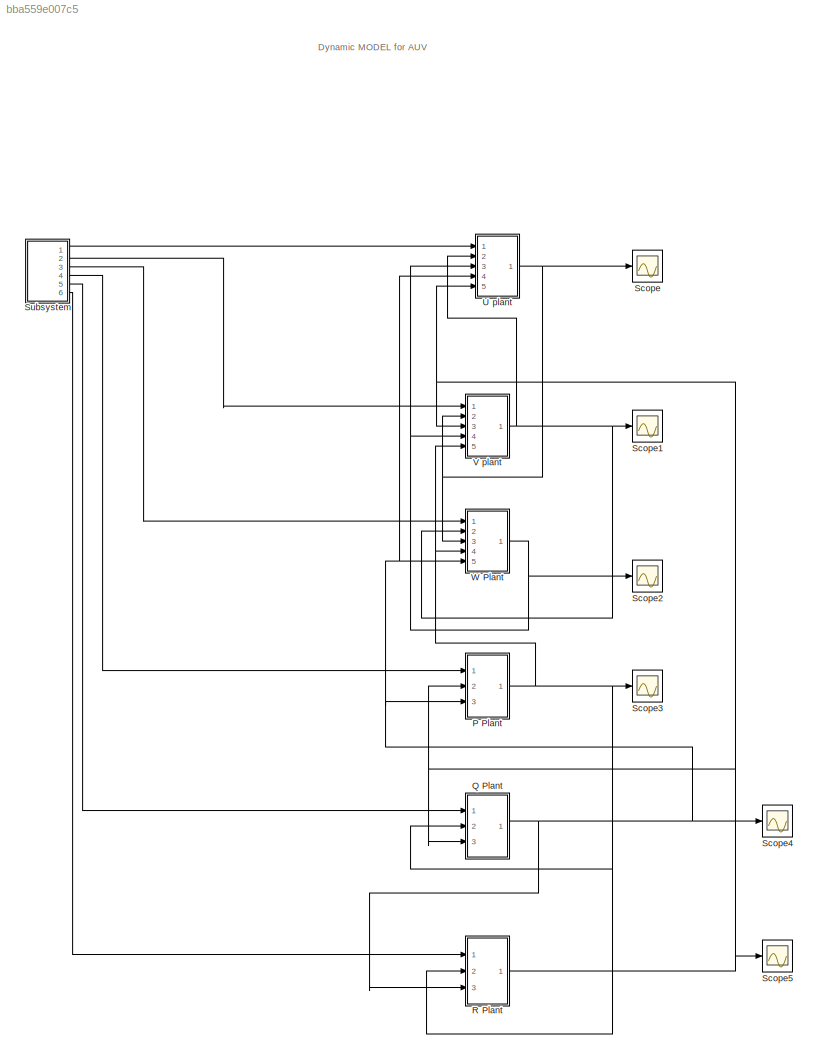
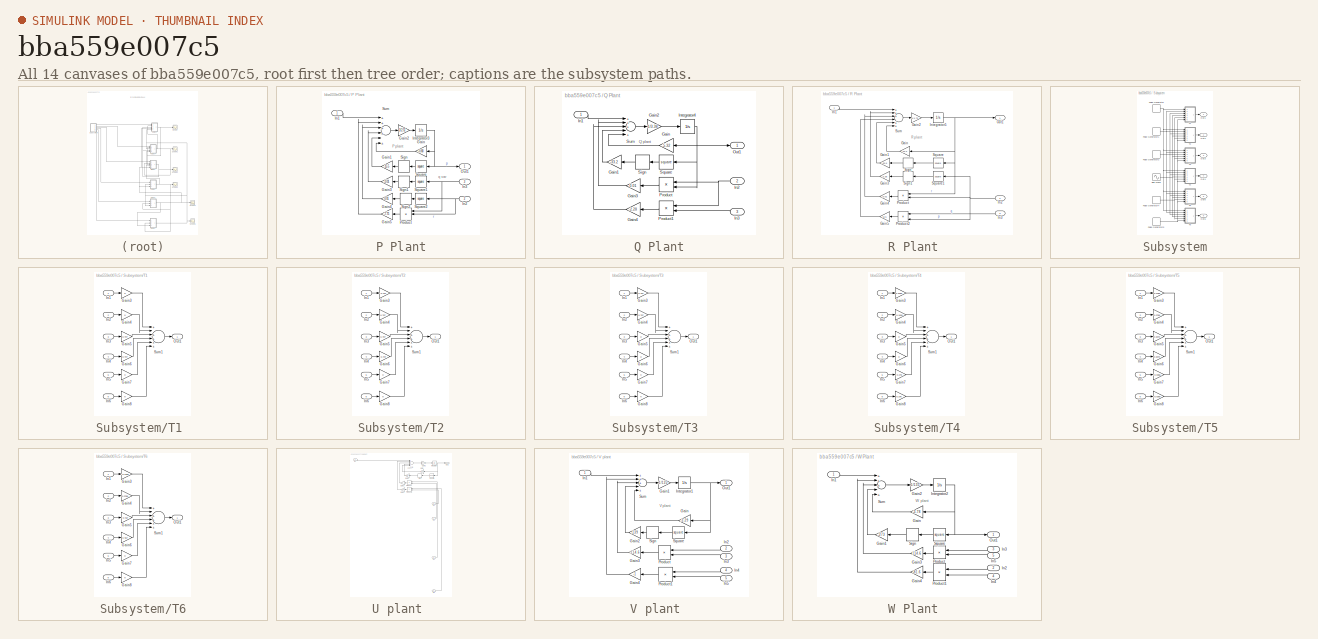
[diagram: thumbnail index - all 14 canvases of the model, root first then tree order]
MODEL slx_bba559e007c5
KIND model
CONFIG AbsTol = auto
CONFIG EnableMultiTasking = off
CONFIG FixedStep = auto
CONFIG MaxStep = auto
CONFIG MinStep = auto
CONFIG RelTol = 1e-3
CONFIG SampleTimeConstraint = Unconstrained
CONFIG Solver = VariableStepAuto
CONFIG SolverName = VariableStepAuto
CONFIG StartTime = 0.0
CONFIG StopTime = 250
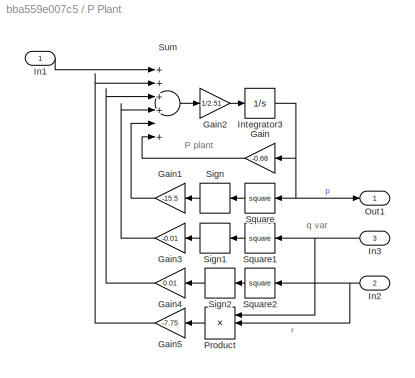
BLOCK [SubSystem] P Plant
  Ports = [3, 1]
  RequestExecContextInheritance = off
BLOCK [Gain] P Plant/Gain
  Gain = -0.68
  OutDataTypeStr = Inherit: Inherit via internal rule
  ParamDataTypeStr = Inherit: Inherit via internal rule
  SaturateOnIntegerOverflow = off
BLOCK [Gain] P Plant/Gain1
  Gain = -15.5
  OutDataTypeStr = Inherit: Inherit via internal rule
  ParamDataTypeStr = Inherit: Inherit via internal rule
  SaturateOnIntegerOverflow = off
BLOCK [Gain] P Plant/Gain2
  Gain = 1/2.51
  OutDataTypeStr = Inherit: Inherit via internal rule
  ParamDataTypeStr = Inherit: Inherit via internal rule
  SaturateOnIntegerOverflow = off
BLOCK [Gain] P Plant/Gain3
  Gain = -0.01
  OutDataTypeStr = Inherit: Inherit via internal rule
  ParamDataTypeStr = Inherit: Inherit via internal rule
  SaturateOnIntegerOverflow = off
BLOCK [Gain] P Plant/Gain4
  Gain = 0.01
  OutDataTypeStr = Inherit: Inherit via internal rule
  ParamDataTypeStr = Inherit: Inherit via internal rule
  SaturateOnIntegerOverflow = off
BLOCK [Gain] P Plant/Gain5
  Gain = -7.75
  OutDataTypeStr = Inherit: Inherit via internal rule
  ParamDataTypeStr = Inherit: Inherit via internal rule
  SaturateOnIntegerOverflow = off
BLOCK [Inport] P Plant/In1
  IconDisplay = Port number
BLOCK [Inport] P Plant/In2
  IconDisplay = Port number
  Port = 2
BLOCK [Inport] P Plant/In3 
  IconDisplay = Port number
  Port = 3
BLOCK [Integrator] P Plant/Integrator3
  Ports = [1, 1]
BLOCK [Outport] P Plant/Out1
  IconDisplay = Port number
BLOCK [Product] P Plant/Product
  InputSameDT = off
  Inputs = 3
  OutDataTypeStr = Inherit: Inherit via internal rule
  Ports = [3, 1]
  RndMeth = Floor
  SaturateOnIntegerOverflow = off
BLOCK [Signum] P Plant/Sign
BLOCK [Signum] P Plant/Sign1
BLOCK [Signum] P Plant/Sign2
BLOCK [Math] P Plant/Square
  Operator = square
  Ports = [1, 1]
BLOCK [Math] P Plant/Square1
  Operator = square
  Ports = [1, 1]
BLOCK [Math] P Plant/Square2
  Operator = square
  Ports = [1, 1]
BLOCK [Sum] P Plant/Sum
  InputSameDT = off
  Inputs = ++++|++
  OutDataTypeStr = Inherit: Inherit via internal rule
  Ports = [6, 1]
  SaturateOnIntegerOverflow = off
BLOCK [SubSystem] Q Plant
  Ports = [3, 1]
  RequestExecContextInheritance = off
BLOCK [Gain] Q Plant/Gain
  Gain = -5.32
  OutDataTypeStr = Inherit: Inherit via internal rule
  ParamDataTypeStr = Inherit: Inherit via internal rule
  SaturateOnIntegerOverflow = off
BLOCK [Gain] Q Plant/Gain1
  Gain = -33.2
  OutDataTypeStr = Inherit: Inherit via internal rule
  ParamDataTypeStr = Inherit: Inherit via internal rule
  SaturateOnIntegerOverflow = off
BLOCK [Gain] Q Plant/Gain2
  Gain = 1/3.38
  OutDataTypeStr = Inherit: Inherit via internal rule
  ParamDataTypeStr = Inherit: Inherit via internal rule
  SaturateOnIntegerOverflow = off
BLOCK [Gain] Q Plant/Gain3
  Gain = 0.01
  OutDataTypeStr = Inherit: Inherit via internal rule
  ParamDataTypeStr = Inherit: Inherit via internal rule
  SaturateOnIntegerOverflow = off
BLOCK [Gain] Q Plant/Gain4
  Gain = -2.28
  OutDataTypeStr = Inherit: Inherit via internal rule
  ParamDataTypeStr = Inherit: Inherit via internal rule
  SaturateOnIntegerOverflow = off
BLOCK [Inport] Q Plant/In1
  IconDisplay = Port number
BLOCK [Inport] Q Plant/In2
  IconDisplay = Port number
  Port = 2
BLOCK [Inport] Q Plant/In3
  IconDisplay = Port number
  Port = 3
BLOCK [Integrator] Q Plant/Integrator4
  Ports = [1, 1]
BLOCK [Outport] Q Plant/Out1
  IconDisplay = Port number
BLOCK [Product] Q Plant/Product
  InputSameDT = off
  OutDataTypeStr = Inherit: Inherit via internal rule
  Ports = [2, 1]
  RndMeth = Floor
  SaturateOnIntegerOverflow = off
BLOCK [Product] Q Plant/Product1
  InputSameDT = off
  OutDataTypeStr = Inherit: Inherit via internal rule
  Ports = [2, 1]
  RndMeth = Floor
  SaturateOnIntegerOverflow = off
BLOCK [Signum] Q Plant/Sign
BLOCK [Math] Q Plant/Square
  Operator = square
  Ports = [1, 1]
BLOCK [Sum] Q Plant/Sum
  InputSameDT = off
  Inputs = +++|++
  OutDataTypeStr = Inherit: Inherit via internal rule
  Ports = [5, 1]
  SaturateOnIntegerOverflow = off
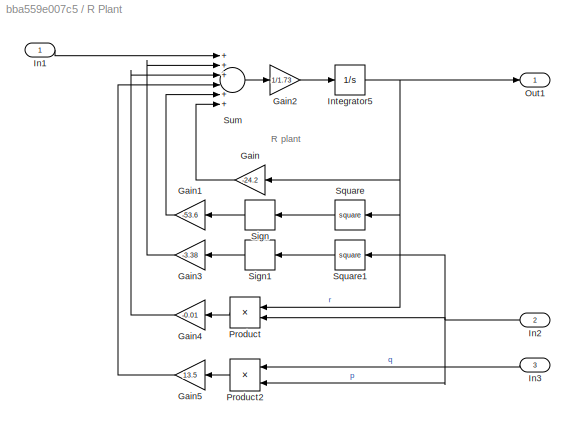
BLOCK [SubSystem] R Plant 
  Ports = [3, 1]
  RequestExecContextInheritance = off
BLOCK [Gain] R Plant /Gain
  Gain = -24.2
  OutDataTypeStr = Inherit: Inherit via internal rule
  ParamDataTypeStr = Inherit: Inherit via internal rule
  SaturateOnIntegerOverflow = off
BLOCK [Gain] R Plant /Gain1
  Gain = -53.6
  OutDataTypeStr = Inherit: Inherit via internal rule
  ParamDataTypeStr = Inherit: Inherit via internal rule
  SaturateOnIntegerOverflow = off
BLOCK [Gain] R Plant /Gain2
  Gain = 1/1.73
  OutDataTypeStr = Inherit: Inherit via internal rule
  ParamDataTypeStr = Inherit: Inherit via internal rule
  SaturateOnIntegerOverflow = off
BLOCK [Gain] R Plant /Gain3
  Gain = -3.38
  OutDataTypeStr = Inherit: Inherit via internal rule
  ParamDataTypeStr = Inherit: Inherit via internal rule
  SaturateOnIntegerOverflow = off
BLOCK [Gain] R Plant /Gain4
  Gain = -0.01
  OutDataTypeStr = Inherit: Inherit via internal rule
  ParamDataTypeStr = Inherit: Inherit via internal rule
  SaturateOnIntegerOverflow = off
BLOCK [Gain] R Plant /Gain5
  Gain = 13.5
  OutDataTypeStr = Inherit: Inherit via internal rule
  ParamDataTypeStr = Inherit: Inherit via internal rule
  SaturateOnIntegerOverflow = off
BLOCK [Inport] R Plant /In1
  IconDisplay = Port number
BLOCK [Inport] R Plant /In2
  IconDisplay = Port number
  Port = 2
BLOCK [Inport] R Plant /In3
  IconDisplay = Port number
  Port = 3
BLOCK [Integrator] R Plant /Integrator5
  Ports = [1, 1]
BLOCK [Outport] R Plant /Out1
  IconDisplay = Port number
BLOCK [Product] R Plant /Product
  InputSameDT = off
  OutDataTypeStr = Inherit: Inherit via internal rule
  Ports = [2, 1]
  RndMeth = Floor
  SaturateOnIntegerOverflow = off
BLOCK [Product] R Plant /Product2
  InputSameDT = off
  Inputs = 3
  OutDataTypeStr = Inherit: Inherit via internal rule
  Ports = [3, 1]
  RndMeth = Floor
  SaturateOnIntegerOverflow = off
BLOCK [Signum] R Plant /Sign
BLOCK [Signum] R Plant /Sign1
BLOCK [Math] R Plant /Square
  Operator = square
  Ports = [1, 1]
BLOCK [Math] R Plant /Square1
  Operator = square
  Ports = [1, 1]
BLOCK [Sum] R Plant /Sum
  InputSameDT = off
  Inputs = +++|+++
  OutDataTypeStr = Inherit: Inherit via internal rule
  Ports = [6, 1]
  SaturateOnIntegerOverflow = off
BLOCK [Scope] Scope
  Floating = off
  NumInputPorts = 1
  Ports = [1]
  ScopeSpecificationString = Simulink.scopes.TimeScopeBlockCfg('CurrentConfiguration', extmgr.ConfigurationSet(extmgr.Configuration('Core','General UI',true),extmgr.Configuration('Core','Source UI',true),extmgr.Configuration('Sources','WiredSimulink',true),extmgr.Configuration('Visuals','Time Domain',true,'SerializedDisplays',{struct('MinYLimReal','-0.39563','MaxYLimReal','1.641','YLabelReal','','MinYLimMag','0.00000','MaxYLi...<+1347ch>
BLOCK [Scope] Scope1
  Floating = off
  NumInputPorts = 1
  Ports = [1]
  ScopeSpecificationString = Simulink.scopes.TimeScopeBlockCfg('CurrentConfiguration', extmgr.ConfigurationSet(extmgr.Configuration('Core','General UI',true),extmgr.Configuration('Core','Source UI',true),extmgr.Configuration('Sources','WiredSimulink',true,'DataLoggingVariableName','ScopeData1'),extmgr.Configuration('Visuals','Time Domain',true,'SerializedDisplays',{struct('MinYLimReal','-2.33546','MaxYLimReal','6.95281','YLab...<+1394ch>
BLOCK [Scope] Scope2
  Floating = off
  NumInputPorts = 1
  Ports = [1]
  ScopeSpecificationString = Simulink.scopes.TimeScopeBlockCfg('CurrentConfiguration', extmgr.ConfigurationSet(extmgr.Configuration('Core','General UI',true),extmgr.Configuration('Core','Source UI',true),extmgr.Configuration('Sources','WiredSimulink',true,'DataLoggingVariableName','ScopeData2'),extmgr.Configuration('Visuals','Time Domain',true,'SerializedDisplays',{struct('MinYLimReal','-214.25825','MaxYLimReal','23.80647','Y...<+1406ch>
BLOCK [Scope] Scope3
  Floating = off
  NumInputPorts = 1
  Ports = [1]
  ScopeSpecificationString = Simulink.scopes.TimeScopeBlockCfg('CurrentConfiguration', extmgr.ConfigurationSet(extmgr.Configuration('Core','General UI',true),extmgr.Configuration('Core','Source UI',true),extmgr.Configuration('Sources','WiredSimulink',true,'DataLoggingVariableName','ScopeData3'),extmgr.Configuration('Visuals','Time Domain',true,'SerializedDisplays',{struct('MinYLimReal','-1.00000','MaxYLimReal','1.00000','YLab...<+1393ch>
BLOCK [Scope] Scope4
  Floating = off
  NumInputPorts = 1
  Ports = [1]
  ScopeSpecificationString = Simulink.scopes.TimeScopeBlockCfg('CurrentConfiguration', extmgr.ConfigurationSet(extmgr.Configuration('Core','General UI',true),extmgr.Configuration('Core','Source UI',true),extmgr.Configuration('Sources','WiredSimulink',true,'DataLoggingVariableName','ScopeData4'),extmgr.Configuration('Visuals','Time Domain',true,'SerializedDisplays',{struct('MinYLimReal','-7.07501','MaxYLimReal','0.78611','YLab...<+1393ch>
BLOCK [Scope] Scope5
  Floating = off
  NumInputPorts = 1
  Ports = [1]
  ScopeSpecificationString = Simulink.scopes.TimeScopeBlockCfg('CurrentConfiguration', extmgr.ConfigurationSet(extmgr.Configuration('Core','General UI',true),extmgr.Configuration('Core','Source UI',true),extmgr.Configuration('Sources','WiredSimulink',true,'DataLoggingVariableName','ScopeData5'),extmgr.Configuration('Visuals','Time Domain',true,'SerializedDisplays',{struct('MinYLimReal','-2.51609','MaxYLimReal','0.27957','YLab...<+1394ch>
BLOCK [SubSystem] Subsystem
  Ports = [0, 6]
  RequestExecContextInheritance = off
BLOCK [Outport] Subsystem/Out1
  IconDisplay = Port number
BLOCK [Outport] Subsystem/Out2
  IconDisplay = Port number
  Port = 2
BLOCK [Outport] Subsystem/Out3
  IconDisplay = Port number
  Port = 3
BLOCK [Outport] Subsystem/Out4
  IconDisplay = Port number
  Port = 4
BLOCK [Outport] Subsystem/Out5
  IconDisplay = Port number
  Port = 5
BLOCK [Outport] Subsystem/Out6
  IconDisplay = Port number
  Port = 6
BLOCK [DiscretePulseGenerator] Subsystem/Pulse Generator
  Amplitude = 0
  Period = 10
  Ports = [0, 1]
  PulseType = Time based
  PulseWidth = 5
BLOCK [DiscretePulseGenerator] Subsystem/Pulse Generator1
  Amplitude = 0
  Period = 10
  Ports = [0, 1]
  PulseType = Time based
  PulseWidth = 5
BLOCK [DiscretePulseGenerator] Subsystem/Pulse Generator2
  Amplitude = 0
  Period = 10
  Ports = [0, 1]
  PulseType = Time based
  PulseWidth = 5
BLOCK [DiscretePulseGenerator] Subsystem/Pulse Generator4
  Amplitude = 0
  Period = 10
  Ports = [0, 1]
  PulseType = Time based
  PulseWidth = 5
BLOCK [DiscretePulseGenerator] Subsystem/Pulse Generator5
  Amplitude = 0
  Period = 10
  Ports = [0, 1]
  PulseType = Time based
  PulseWidth = 5
BLOCK [Sin] Subsystem/Sine Wave
  Ports = [0, 1]
  SampleTime = 0
BLOCK [SubSystem] Subsystem/T1 
  Ports = [6, 1]
  RequestExecContextInheritance = off
BLOCK [Gain] Subsystem/T1 /Gain3
  Gain = 0
  OutDataTypeStr = Inherit: Inherit via internal rule
  ParamDataTypeStr = Inherit: Inherit via internal rule
  SaturateOnIntegerOverflow = off
BLOCK [Gain] Subsystem/T1 /Gain4
  Gain = 0
  OutDataTypeStr = Inherit: Inherit via internal rule
  ParamDataTypeStr = Inherit: Inherit via internal rule
  SaturateOnIntegerOverflow = off
BLOCK [Gain] Subsystem/T1 /Gain5
  Gain = 0.707
  OutDataTypeStr = Inherit: Inherit via internal rule
  ParamDataTypeStr = Inherit: Inherit via internal rule
  SaturateOnIntegerOverflow = off
BLOCK [Gain] Subsystem/T1 /Gain6
  Gain = 0.707
  OutDataTypeStr = Inherit: Inherit via internal rule
  ParamDataTypeStr = Inherit: Inherit via internal rule
  SaturateOnIntegerOverflow = off
BLOCK [Gain] Subsystem/T1 /Gain7
  Gain = 0
  OutDataTypeStr = Inherit: Inherit via internal rule
  ParamDataTypeStr = Inherit: Inherit via internal rule
  SaturateOnIntegerOverflow = off
BLOCK [Gain] Subsystem/T1 /Gain8
  Gain = 0
  OutDataTypeStr = Inherit: Inherit via internal rule
  ParamDataTypeStr = Inherit: Inherit via internal rule
  SaturateOnIntegerOverflow = off
BLOCK [Inport] Subsystem/T1 /In1
  IconDisplay = Port number
BLOCK [Inport] Subsystem/T1 /In2
  IconDisplay = Port number
  Port = 2
BLOCK [Inport] Subsystem/T1 /In3
  IconDisplay = Port number
  Port = 3
BLOCK [Inport] Subsystem/T1 /In4
  IconDisplay = Port number
  Port = 4
BLOCK [Inport] Subsystem/T1 /In5
  IconDisplay = Port number
  Port = 5
BLOCK [Inport] Subsystem/T1 /In6
  IconDisplay = Port number
  Port = 6
BLOCK [Outport] Subsystem/T1 /Out1
  IconDisplay = Port number
BLOCK [Sum] Subsystem/T1 /Sum1
  InputSameDT = off
  Inputs = +|+++++
  OutDataTypeStr = Inherit: Inherit via internal rule
  Ports = [6, 1]
  SaturateOnIntegerOverflow = off
BLOCK [SubSystem] Subsystem/T2
  Ports = [6, 1]
  RequestExecContextInheritance = off
BLOCK [Gain] Subsystem/T2/Gain3
  Gain = -0.707
  OutDataTypeStr = Inherit: Inherit via internal rule
  ParamDataTypeStr = Inherit: Inherit via internal rule
  SaturateOnIntegerOverflow = off
BLOCK [Gain] Subsystem/T2/Gain4
  Gain = 0.707
  OutDataTypeStr = Inherit: Inherit via internal rule
  ParamDataTypeStr = Inherit: Inherit via internal rule
  SaturateOnIntegerOverflow = off
BLOCK [Gain] Subsystem/T2/Gain5
  Gain = 0.707
  OutDataTypeStr = Inherit: Inherit via internal rule
  ParamDataTypeStr = Inherit: Inherit via internal rule
  SaturateOnIntegerOverflow = off
BLOCK [Gain] Subsystem/T2/Gain6
  Gain = -0.707
  OutDataTypeStr = Inherit: Inherit via internal rule
  ParamDataTypeStr = Inherit: Inherit via internal rule
  SaturateOnIntegerOverflow = off
BLOCK [Gain] Subsystem/T2/Gain7
  Gain = 0
  OutDataTypeStr = Inherit: Inherit via internal rule
  ParamDataTypeStr = Inherit: Inherit via internal rule
  SaturateOnIntegerOverflow = off
BLOCK [Gain] Subsystem/T2/Gain8
  Gain = 0
  OutDataTypeStr = Inherit: Inherit via internal rule
  ParamDataTypeStr = Inherit: Inherit via internal rule
  SaturateOnIntegerOverflow = off
BLOCK [Inport] Subsystem/T2/In1
  IconDisplay = Port number
BLOCK [Inport] Subsystem/T2/In2
  IconDisplay = Port number
  Port = 2
BLOCK [Inport] Subsystem/T2/In3
  IconDisplay = Port number
  Port = 3
BLOCK [Inport] Subsystem/T2/In4
  IconDisplay = Port number
  Port = 4
BLOCK [Inport] Subsystem/T2/In5
  IconDisplay = Port number
  Port = 5
BLOCK [Inport] Subsystem/T2/In6
  IconDisplay = Port number
  Port = 6
BLOCK [Outport] Subsystem/T2/Out1
  IconDisplay = Port number
BLOCK [Sum] Subsystem/T2/Sum1
  InputSameDT = off
  Inputs = +|+++++
  OutDataTypeStr = Inherit: Inherit via internal rule
  Ports = [6, 1]
  SaturateOnIntegerOverflow = off
BLOCK [SubSystem] Subsystem/T3 
  Ports = [6, 1]
  RequestExecContextInheritance = off
BLOCK [Gain] Subsystem/T3 /Gain3
  Gain = 0.707
  OutDataTypeStr = Inherit: Inherit via internal rule
  ParamDataTypeStr = Inherit: Inherit via internal rule
  SaturateOnIntegerOverflow = off
BLOCK [Gain] Subsystem/T3 /Gain4
  Gain = 0.707
  OutDataTypeStr = Inherit: Inherit via internal rule
  ParamDataTypeStr = Inherit: Inherit via internal rule
  SaturateOnIntegerOverflow = off
BLOCK [Gain] Subsystem/T3 /Gain5
  Gain = 0
  OutDataTypeStr = Inherit: Inherit via internal rule
  ParamDataTypeStr = Inherit: Inherit via internal rule
  SaturateOnIntegerOverflow = off
BLOCK [Gain] Subsystem/T3 /Gain6
  Gain = 0
  OutDataTypeStr = Inherit: Inherit via internal rule
  ParamDataTypeStr = Inherit: Inherit via internal rule
  SaturateOnIntegerOverflow = off
BLOCK [Gain] Subsystem/T3 /Gain7
  OutDataTypeStr = Inherit: Inherit via internal rule
  ParamDataTypeStr = Inherit: Inherit via internal rule
  SaturateOnIntegerOverflow = off
BLOCK [Gain] Subsystem/T3 /Gain8
  OutDataTypeStr = Inherit: Inherit via internal rule
  ParamDataTypeStr = Inherit: Inherit via internal rule
  SaturateOnIntegerOverflow = off
BLOCK [Inport] Subsystem/T3 /In1
  IconDisplay = Port number
BLOCK [Inport] Subsystem/T3 /In2
  IconDisplay = Port number
  Port = 2
BLOCK [Inport] Subsystem/T3 /In3
  IconDisplay = Port number
  Port = 3
BLOCK [Inport] Subsystem/T3 /In4
  IconDisplay = Port number
  Port = 4
BLOCK [Inport] Subsystem/T3 /In5
  IconDisplay = Port number
  Port = 5
BLOCK [Inport] Subsystem/T3 /In6
  IconDisplay = Port number
  Port = 6
BLOCK [Outport] Subsystem/T3 /Out1
  IconDisplay = Port number
BLOCK [Sum] Subsystem/T3 /Sum1
  InputSameDT = off
  Inputs = +|+++++
  OutDataTypeStr = Inherit: Inherit via internal rule
  Ports = [6, 1]
  SaturateOnIntegerOverflow = off
BLOCK [SubSystem] Subsystem/T4
  Ports = [6, 1]
  RequestExecContextInheritance = off
BLOCK [Gain] Subsystem/T4/Gain3
  Gain = 0.1099
  OutDataTypeStr = Inherit: Inherit via internal rule
  ParamDataTypeStr = Inherit: Inherit via internal rule
  SaturateOnIntegerOverflow = off
BLOCK [Gain] Subsystem/T4/Gain4
  Gain = -0.1099
  OutDataTypeStr = Inherit: Inherit via internal rule
  ParamDataTypeStr = Inherit: Inherit via internal rule
  SaturateOnIntegerOverflow = off
BLOCK [Gain] Subsystem/T4/Gain5
  Gain = 0
  OutDataTypeStr = Inherit: Inherit via internal rule
  ParamDataTypeStr = Inherit: Inherit via internal rule
  SaturateOnIntegerOverflow = off
BLOCK [Gain] Subsystem/T4/Gain6
  Gain = 0
  OutDataTypeStr = Inherit: Inherit via internal rule
  ParamDataTypeStr = Inherit: Inherit via internal rule
  SaturateOnIntegerOverflow = off
BLOCK [Gain] Subsystem/T4/Gain7
  Gain = -0.275
  OutDataTypeStr = Inherit: Inherit via internal rule
  ParamDataTypeStr = Inherit: Inherit via internal rule
  SaturateOnIntegerOverflow = off
BLOCK [Gain] Subsystem/T4/Gain8
  Gain = 0.275
  OutDataTypeStr = Inherit: Inherit via internal rule
  ParamDataTypeStr = Inherit: Inherit via internal rule
  SaturateOnIntegerOverflow = off
BLOCK [Inport] Subsystem/T4/In1
  IconDisplay = Port number
BLOCK [Inport] Subsystem/T4/In2
  IconDisplay = Port number
  Port = 2
BLOCK [Inport] Subsystem/T4/In3
  IconDisplay = Port number
  Port = 3
BLOCK [Inport] Subsystem/T4/In4
  IconDisplay = Port number
  Port = 4
BLOCK [Inport] Subsystem/T4/In5
  IconDisplay = Port number
  Port = 5
BLOCK [Inport] Subsystem/T4/In6
  IconDisplay = Port number
  Port = 6
BLOCK [Outport] Subsystem/T4/Out1
  IconDisplay = Port number
BLOCK [Sum] Subsystem/T4/Sum1
  InputSameDT = off
  Inputs = +|+++++
  OutDataTypeStr = Inherit: Inherit via internal rule
  Ports = [6, 1]
  SaturateOnIntegerOverflow = off
BLOCK [SubSystem] Subsystem/T5
  Ports = [6, 1]
  RequestExecContextInheritance = off
BLOCK [Gain] Subsystem/T5/Gain3
  Gain = 0.2789
  OutDataTypeStr = Inherit: Inherit via internal rule
  ParamDataTypeStr = Inherit: Inherit via internal rule
  SaturateOnIntegerOverflow = off
BLOCK [Gain] Subsystem/T5/Gain4
  Gain = 0.2789
  OutDataTypeStr = Inherit: Inherit via internal rule
  ParamDataTypeStr = Inherit: Inherit via internal rule
  SaturateOnIntegerOverflow = off
BLOCK [Gain] Subsystem/T5/Gain5
  Gain = 0.3044
  OutDataTypeStr = Inherit: Inherit via internal rule
  ParamDataTypeStr = Inherit: Inherit via internal rule
  SaturateOnIntegerOverflow = off
BLOCK [Gain] Subsystem/T5/Gain6
  Gain = 0.3044
  OutDataTypeStr = Inherit: Inherit via internal rule
  ParamDataTypeStr = Inherit: Inherit via internal rule
  SaturateOnIntegerOverflow = off
BLOCK [Gain] Subsystem/T5/Gain7
  Gain = -0.0355
  OutDataTypeStr = Inherit: Inherit via internal rule
  ParamDataTypeStr = Inherit: Inherit via internal rule
  SaturateOnIntegerOverflow = off
BLOCK [Gain] Subsystem/T5/Gain8
  Gain = -0.0355
  OutDataTypeStr = Inherit: Inherit via internal rule
  ParamDataTypeStr = Inherit: Inherit via internal rule
  SaturateOnIntegerOverflow = off
BLOCK [Inport] Subsystem/T5/In1
  IconDisplay = Port number
BLOCK [Inport] Subsystem/T5/In2
  IconDisplay = Port number
  Port = 2
BLOCK [Inport] Subsystem/T5/In3
  IconDisplay = Port number
  Port = 3
BLOCK [Inport] Subsystem/T5/In4
  IconDisplay = Port number
  Port = 4
BLOCK [Inport] Subsystem/T5/In5
  IconDisplay = Port number
  Port = 5
BLOCK [Inport] Subsystem/T5/In6
  IconDisplay = Port number
  Port = 6
BLOCK [Outport] Subsystem/T5/Out1
  IconDisplay = Port number
BLOCK [Sum] Subsystem/T5/Sum1
  InputSameDT = off
  Inputs = +|+++++
  OutDataTypeStr = Inherit: Inherit via internal rule
  Ports = [6, 1]
  SaturateOnIntegerOverflow = off
BLOCK [SubSystem] Subsystem/T6
  Ports = [6, 1]
  RequestExecContextInheritance = off
BLOCK [Gain] Subsystem/T6/Gain3
  Gain = -0.2789
  OutDataTypeStr = Inherit: Inherit via internal rule
  ParamDataTypeStr = Inherit: Inherit via internal rule
  SaturateOnIntegerOverflow = off
BLOCK [Gain] Subsystem/T6/Gain4
  Gain = 0.2789
  OutDataTypeStr = Inherit: Inherit via internal rule
  ParamDataTypeStr = Inherit: Inherit via internal rule
  SaturateOnIntegerOverflow = off
BLOCK [Gain] Subsystem/T6/Gain5
  Gain = -0.467
  OutDataTypeStr = Inherit: Inherit via internal rule
  ParamDataTypeStr = Inherit: Inherit via internal rule
  SaturateOnIntegerOverflow = off
BLOCK [Gain] Subsystem/T6/Gain6
  Gain = 0.467
  OutDataTypeStr = Inherit: Inherit via internal rule
  ParamDataTypeStr = Inherit: Inherit via internal rule
  SaturateOnIntegerOverflow = off
BLOCK [Gain] Subsystem/T6/Gain7
  Gain = 0
  OutDataTypeStr = Inherit: Inherit via internal rule
  ParamDataTypeStr = Inherit: Inherit via internal rule
  SaturateOnIntegerOverflow = off
BLOCK [Gain] Subsystem/T6/Gain8
  Gain = 0
  OutDataTypeStr = Inherit: Inherit via internal rule
  ParamDataTypeStr = Inherit: Inherit via internal rule
  SaturateOnIntegerOverflow = off
BLOCK [Inport] Subsystem/T6/In1
  IconDisplay = Port number
BLOCK [Inport] Subsystem/T6/In2
  IconDisplay = Port number
  Port = 2
BLOCK [Inport] Subsystem/T6/In3
  IconDisplay = Port number
  Port = 3
BLOCK [Inport] Subsystem/T6/In4
  IconDisplay = Port number
  Port = 4
BLOCK [Inport] Subsystem/T6/In5
  IconDisplay = Port number
  Port = 5
BLOCK [Inport] Subsystem/T6/In6
  IconDisplay = Port number
  Port = 6
BLOCK [Outport] Subsystem/T6/Out1
  IconDisplay = Port number
BLOCK [Sum] Subsystem/T6/Sum1
  InputSameDT = off
  Inputs = +|+++++
  OutDataTypeStr = Inherit: Inherit via internal rule
  Ports = [6, 1]
  SaturateOnIntegerOverflow = off
BLOCK [SubSystem] U plant 
  Ports = [5, 1]
  RequestExecContextInheritance = off
BLOCK [Gain] U plant /Gain
  Gain = -3.22
  OutDataTypeStr = Inherit: Inherit via internal rule
  ParamDataTypeStr = Inherit: Inherit via internal rule
  SaturateOnIntegerOverflow = off
BLOCK [Gain] U plant /Gain1
  Gain = -105
  OutDataTypeStr = Inherit: Inherit via internal rule
  ParamDataTypeStr = Inherit: Inherit via internal rule
  SaturateOnIntegerOverflow = off
BLOCK [Gain] U plant /Gain2
  Gain = 1/135
  OutDataTypeStr = Inherit: Inherit via internal rule
  ParamDataTypeStr = Inherit: Inherit via internal rule
  SaturateOnIntegerOverflow = off
BLOCK [Gain] U plant /Gain3
  OutDataTypeStr = Inherit: Inherit via internal rule
  ParamDataTypeStr = Inherit: Inherit via internal rule
  SaturateOnIntegerOverflow = off
BLOCK [Gain] U plant /Gain4
  Gain = 81.6
  OutDataTypeStr = Inherit: Inherit via internal rule
  ParamDataTypeStr = Inherit: Inherit via internal rule
  SaturateOnIntegerOverflow = off
BLOCK [Inport] U plant /In1
  IconDisplay = Port number
BLOCK [Inport] U plant /In2
  IconDisplay = Port number
  Port = 2
BLOCK [Inport] U plant /In3
  IconDisplay = Port number
  Port = 3
BLOCK [Inport] U plant /In4
  IconDisplay = Port number
  Port = 4
BLOCK [Inport] U plant /In5
  IconDisplay = Port number
  Port = 5
BLOCK [Integrator] U plant /Integrator
  Ports = [1, 1]
BLOCK [Outport] U plant /Out1
  IconDisplay = Port number
BLOCK [Product] U plant /Product
  InputSameDT = off
  OutDataTypeStr = Inherit: Inherit via internal rule
  Ports = [2, 1]
  RndMeth = Floor
  SaturateOnIntegerOverflow = off
BLOCK [Product] U plant /Product1
  InputSameDT = off
  OutDataTypeStr = Inherit: Inherit via internal rule
  Ports = [2, 1]
  RndMeth = Floor
  SaturateOnIntegerOverflow = off
BLOCK [Signum] U plant /Sign
BLOCK [Math] U plant /Square
  Operator = square
  Ports = [1, 1]
BLOCK [Sum] U plant /Sum
  InputSameDT = off
  Inputs = ++|+++
  OutDataTypeStr = Inherit: Inherit via internal rule
  Ports = [5, 1]
  SaturateOnIntegerOverflow = off
BLOCK [SubSystem] V plant 
  Ports = [5, 1]
  RequestExecContextInheritance = off
BLOCK [Gain] V plant /Gain
  Gain = -3.29
  OutDataTypeStr = Inherit: Inherit via internal rule
  ParamDataTypeStr = Inherit: Inherit via internal rule
  SaturateOnIntegerOverflow = off
BLOCK [Gain] V plant /Gain1
  Gain = 1/135
  OutDataTypeStr = Inherit: Inherit via internal rule
  ParamDataTypeStr = Inherit: Inherit via internal rule
  SaturateOnIntegerOverflow = off
BLOCK [Gain] V plant /Gain2
  Gain = -139
  OutDataTypeStr = Inherit: Inherit via internal rule
  ParamDataTypeStr = Inherit: Inherit via internal rule
  SaturateOnIntegerOverflow = off
BLOCK [Gain] V plant /Gain3
  Gain = -114.6
  OutDataTypeStr = Inherit: Inherit via internal rule
  ParamDataTypeStr = Inherit: Inherit via internal rule
  SaturateOnIntegerOverflow = off
BLOCK [Gain] V plant /Gain4
  Gain = -1
  OutDataTypeStr = Inherit: Inherit via internal rule
  ParamDataTypeStr = Inherit: Inherit via internal rule
  SaturateOnIntegerOverflow = off
BLOCK [Inport] V plant /In1
  IconDisplay = Port number
BLOCK [Inport] V plant /In2
  IconDisplay = Port number
  Port = 2
BLOCK [Inport] V plant /In3
  IconDisplay = Port number
  Port = 3
BLOCK [Inport] V plant /In4
  IconDisplay = Port number
  Port = 4
BLOCK [Inport] V plant /In5
  IconDisplay = Port number
  Port = 5
BLOCK [Integrator] V plant /Integrator1
  Ports = [1, 1]
BLOCK [Outport] V plant /Out1
  IconDisplay = Port number
BLOCK [Product] V plant /Product
  InputSameDT = off
  OutDataTypeStr = Inherit: Inherit via internal rule
  Ports = [2, 1]
  RndMeth = Floor
  SaturateOnIntegerOverflow = off
BLOCK [Product] V plant /Product1
  InputSameDT = off
  OutDataTypeStr = Inherit: Inherit via internal rule
  Ports = [2, 1]
  RndMeth = Floor
  SaturateOnIntegerOverflow = off
BLOCK [Signum] V plant /Sign
BLOCK [Math] V plant /Square
  Operator = square
  Ports = [1, 1]
BLOCK [Sum] V plant /Sum
  InputSameDT = off
  Inputs = +++|++
  OutDataTypeStr = Inherit: Inherit via internal rule
  Ports = [5, 1]
  SaturateOnIntegerOverflow = off
BLOCK [SubSystem] W Plant 
  Ports = [5, 1]
  RequestExecContextInheritance = off
BLOCK [Gain] W Plant /Gain
  Gain = -3.78
  OutDataTypeStr = Inherit: Inherit via internal rule
  ParamDataTypeStr = Inherit: Inherit via internal rule
  SaturateOnIntegerOverflow = off
BLOCK [Gain] W Plant /Gain1
  Gain = -273
  OutDataTypeStr = Inherit: Inherit via internal rule
  ParamDataTypeStr = Inherit: Inherit via internal rule
  SaturateOnIntegerOverflow = off
BLOCK [Gain] W Plant /Gain2
  Gain = 1/135
  OutDataTypeStr = Inherit: Inherit via internal rule
  ParamDataTypeStr = Inherit: Inherit via internal rule
  SaturateOnIntegerOverflow = off
BLOCK [Gain] W Plant /Gain3
  Gain = 114.6
  OutDataTypeStr = Inherit: Inherit via internal rule
  ParamDataTypeStr = Inherit: Inherit via internal rule
  SaturateOnIntegerOverflow = off
BLOCK [Gain] W Plant /Gain4
  Gain = -81.6
  OutDataTypeStr = Inherit: Inherit via internal rule
  ParamDataTypeStr = Inherit: Inherit via internal rule
  SaturateOnIntegerOverflow = off
BLOCK [Inport] W Plant /In1
  IconDisplay = Port number
BLOCK [Inport] W Plant /In2
  IconDisplay = Port number
  Port = 2
BLOCK [Inport] W Plant /In3
  IconDisplay = Port number
  Port = 3
BLOCK [Inport] W Plant /In4
  IconDisplay = Port number
  Port = 4
BLOCK [Inport] W Plant /In5
  IconDisplay = Port number
  Port = 5
BLOCK [Integrator] W Plant /Integrator2
  Ports = [1, 1]
BLOCK [Outport] W Plant /Out1
  IconDisplay = Port number
BLOCK [Product] W Plant /Product
  InputSameDT = off
  OutDataTypeStr = Inherit: Inherit via internal rule
  Ports = [2, 1]
  RndMeth = Floor
  SaturateOnIntegerOverflow = off
BLOCK [Product] W Plant /Product1
  InputSameDT = off
  OutDataTypeStr = Inherit: Inherit via internal rule
  Ports = [2, 1]
  RndMeth = Floor
  SaturateOnIntegerOverflow = off
BLOCK [Signum] W Plant /Sign
BLOCK [Math] W Plant /Square
  Operator = square
  Ports = [1, 1]
BLOCK [Sum] W Plant /Sum
  InputSameDT = off
  Inputs = +++|++
  OutDataTypeStr = Inherit: Inherit via internal rule
  Ports = [5, 1]
  SaturateOnIntegerOverflow = off
ANNOTATION (root): Dynamic MODEL for AUV
ANNOTATION P Plant: P plant
ANNOTATION P Plant: q var
ANNOTATION Q Plant: Q plant
ANNOTATION R Plant : R plant
ANNOTATION U plant : U plant
ANNOTATION V plant : V plant
ANNOTATION W Plant : W plant
LINE P Plant/Gain1:1 -> P Plant/Sum:5
LINE P Plant/Gain2:1 -> P Plant/Integrator3:1
LINE P Plant/Gain3:1 -> P Plant/Sum:4
LINE P Plant/Gain4:1 -> P Plant/Sum:3
LINE P Plant/Gain5:1 -> P Plant/Sum:2
LINE P Plant/Gain:1 -> P Plant/Sum:6
LINE P Plant/In1:1 -> P Plant/Sum:1
NET P Plant/In2:1 -> P Plant/Product:2, P Plant/Square2:1
NET P Plant/In3 :1 -> P Plant/Product:1, P Plant/Square1:1
NET P Plant/Integrator3:1 -> P Plant/Gain:1, P Plant/Out1:1, P Plant/Square:1
LINE P Plant/Product:1 -> P Plant/Gain5:1
LINE P Plant/Sign1:1 -> P Plant/Gain3:1
LINE P Plant/Sign2:1 -> P Plant/Gain4:1
LINE P Plant/Sign:1 -> P Plant/Gain1:1
LINE P Plant/Square1:1 -> P Plant/Sign1:1
LINE P Plant/Square2:1 -> P Plant/Sign2:1
LINE P Plant/Square:1 -> P Plant/Sign:1
LINE P Plant/Sum:1 -> P Plant/Gain2:1
NET P Plant:1 -> Q Plant:2, R Plant :2, Scope3:1, V plant :5, W Plant :4
LINE Q Plant/Gain1:1 -> Q Plant/Sum:4
LINE Q Plant/Gain2:1 -> Q Plant/Integrator4:1
LINE Q Plant/Gain3:1 -> Q Plant/Sum:2
LINE Q Plant/Gain4:1 -> Q Plant/Sum:3
LINE Q Plant/Gain:1 -> Q Plant/Sum:5
LINE Q Plant/In1:1 -> Q Plant/Sum:1
NET Q Plant/In2:1 -> Q Plant/Product1:1, Q Plant/Product:1
LINE Q Plant/In3:1 -> Q Plant/Product1:2
NET Q Plant/Integrator4:1 -> Q Plant/Gain:1, Q Plant/Out1:1, Q Plant/Product:2, Q Plant/Square:1
LINE Q Plant/Product1:1 -> Q Plant/Gain4:1
LINE Q Plant/Product:1 -> Q Plant/Gain3:1
LINE Q Plant/Sign:1 -> Q Plant/Gain1:1
LINE Q Plant/Square:1 -> Q Plant/Sign:1
LINE Q Plant/Sum:1 -> Q Plant/Gain2:1
NET Q Plant:1 -> P Plant:3, R Plant :3, Scope4:1, U plant :4, W Plant :5
LINE R Plant /Gain1:1 -> R Plant /Sum:5
LINE R Plant /Gain2:1 -> R Plant /Integrator5:1
LINE R Plant /Gain3:1 -> R Plant /Sum:2
LINE R Plant /Gain4:1 -> R Plant /Sum:3
LINE R Plant /Gain5:1 -> R Plant /Sum:4
LINE R Plant /Gain:1 -> R Plant /Sum:6
LINE R Plant /In1:1 -> R Plant /Sum:1
NET R Plant /In2:1 -> R Plant /Product2:3, R Plant /Product:2, R Plant /Square1:1
LINE R Plant /In3:1 -> R Plant /Product2:1
NET R Plant /Integrator5:1 -> R Plant /Gain:1, R Plant /Out1:1, R Plant /Product:1, R Plant /Square:1
LINE R Plant /Product2:1 -> R Plant /Gain5:1
LINE R Plant /Product:1 -> R Plant /Gain4:1
LINE R Plant /Sign1:1 -> R Plant /Gain3:1
LINE R Plant /Sign:1 -> R Plant /Gain1:1
LINE R Plant /Square1:1 -> R Plant /Sign1:1
LINE R Plant /Square:1 -> R Plant /Sign:1
LINE R Plant /Sum:1 -> R Plant /Gain2:1
NET R Plant :1 -> P Plant:2, Q Plant:3, Scope5:1, U plant :5, V plant :3
NET Subsystem/Pulse Generator1:1 -> Subsystem/T1 :2, Subsystem/T2:2, Subsystem/T3 :2, Subsystem/T4:2, Subsystem/T5:2, Subsystem/T6:2
NET Subsystem/Pulse Generator2:1 -> Subsystem/T1 :3, Subsystem/T2:3, Subsystem/T3 :3, Subsystem/T4:3, Subsystem/T5:3, Subsystem/T6:3
NET Subsystem/Pulse Generator4:1 -> Subsystem/T1 :5, Subsystem/T2:5, Subsystem/T3 :5, Subsystem/T4:5, Subsystem/T5:5, Subsystem/T6:5
NET Subsystem/Pulse Generator5:1 -> Subsystem/T1 :6, Subsystem/T2:6, Subsystem/T3 :6, Subsystem/T4:6, Subsystem/T5:6, Subsystem/T6:6
NET Subsystem/Pulse Generator:1 -> Subsystem/T1 :1, Subsystem/T2:1, Subsystem/T3 :1, Subsystem/T4:1, Subsystem/T5:1, Subsystem/T6:1
NET Subsystem/Sine Wave:1 -> Subsystem/T1 :4, Subsystem/T2:4, Subsystem/T3 :4, Subsystem/T4:4, Subsystem/T5:4, Subsystem/T6:4
LINE Subsystem/T1 /Gain3:1 -> Subsystem/T1 /Sum1:1
LINE Subsystem/T1 /Gain4:1 -> Subsystem/T1 /Sum1:2
LINE Subsystem/T1 /Gain5:1 -> Subsystem/T1 /Sum1:3
LINE Subsystem/T1 /Gain6:1 -> Subsystem/T1 /Sum1:4
LINE Subsystem/T1 /Gain7:1 -> Subsystem/T1 /Sum1:5
LINE Subsystem/T1 /Gain8:1 -> Subsystem/T1 /Sum1:6
LINE Subsystem/T1 /In1:1 -> Subsystem/T1 /Gain3:1
LINE Subsystem/T1 /In2:1 -> Subsystem/T1 /Gain4:1
LINE Subsystem/T1 /In3:1 -> Subsystem/T1 /Gain5:1
LINE Subsystem/T1 /In4:1 -> Subsystem/T1 /Gain6:1
LINE Subsystem/T1 /In5:1 -> Subsystem/T1 /Gain7:1
LINE Subsystem/T1 /In6:1 -> Subsystem/T1 /Gain8:1
LINE Subsystem/T1 /Sum1:1 -> Subsystem/T1 /Out1:1
LINE Subsystem/T1 :1 -> Subsystem/Out1:1
LINE Subsystem/T2/Gain3:1 -> Subsystem/T2/Sum1:1
LINE Subsystem/T2/Gain4:1 -> Subsystem/T2/Sum1:2
LINE Subsystem/T2/Gain5:1 -> Subsystem/T2/Sum1:3
LINE Subsystem/T2/Gain6:1 -> Subsystem/T2/Sum1:4
LINE Subsystem/T2/Gain7:1 -> Subsystem/T2/Sum1:5
LINE Subsystem/T2/Gain8:1 -> Subsystem/T2/Sum1:6
LINE Subsystem/T2/In1:1 -> Subsystem/T2/Gain3:1
LINE Subsystem/T2/In2:1 -> Subsystem/T2/Gain4:1
LINE Subsystem/T2/In3:1 -> Subsystem/T2/Gain5:1
LINE Subsystem/T2/In4:1 -> Subsystem/T2/Gain6:1
LINE Subsystem/T2/In5:1 -> Subsystem/T2/Gain7:1
LINE Subsystem/T2/In6:1 -> Subsystem/T2/Gain8:1
LINE Subsystem/T2/Sum1:1 -> Subsystem/T2/Out1:1
LINE Subsystem/T2:1 -> Subsystem/Out2:1
LINE Subsystem/T3 /Gain3:1 -> Subsystem/T3 /Sum1:1
LINE Subsystem/T3 /Gain4:1 -> Subsystem/T3 /Sum1:2
LINE Subsystem/T3 /Gain5:1 -> Subsystem/T3 /Sum1:3
LINE Subsystem/T3 /Gain6:1 -> Subsystem/T3 /Sum1:4
LINE Subsystem/T3 /Gain7:1 -> Subsystem/T3 /Sum1:5
LINE Subsystem/T3 /Gain8:1 -> Subsystem/T3 /Sum1:6
LINE Subsystem/T3 /In1:1 -> Subsystem/T3 /Gain3:1
LINE Subsystem/T3 /In2:1 -> Subsystem/T3 /Gain4:1
LINE Subsystem/T3 /In3:1 -> Subsystem/T3 /Gain5:1
LINE Subsystem/T3 /In4:1 -> Subsystem/T3 /Gain6:1
LINE Subsystem/T3 /In5:1 -> Subsystem/T3 /Gain7:1
LINE Subsystem/T3 /In6:1 -> Subsystem/T3 /Gain8:1
LINE Subsystem/T3 /Sum1:1 -> Subsystem/T3 /Out1:1
LINE Subsystem/T3 :1 -> Subsystem/Out3:1
LINE Subsystem/T4/Gain3:1 -> Subsystem/T4/Sum1:1
LINE Subsystem/T4/Gain4:1 -> Subsystem/T4/Sum1:2
LINE Subsystem/T4/Gain5:1 -> Subsystem/T4/Sum1:3
LINE Subsystem/T4/Gain6:1 -> Subsystem/T4/Sum1:4
LINE Subsystem/T4/Gain7:1 -> Subsystem/T4/Sum1:5
LINE Subsystem/T4/Gain8:1 -> Subsystem/T4/Sum1:6
LINE Subsystem/T4/In1:1 -> Subsystem/T4/Gain3:1
LINE Subsystem/T4/In2:1 -> Subsystem/T4/Gain4:1
LINE Subsystem/T4/In3:1 -> Subsystem/T4/Gain5:1
LINE Subsystem/T4/In4:1 -> Subsystem/T4/Gain6:1
LINE Subsystem/T4/In5:1 -> Subsystem/T4/Gain7:1
LINE Subsystem/T4/In6:1 -> Subsystem/T4/Gain8:1
LINE Subsystem/T4/Sum1:1 -> Subsystem/T4/Out1:1
LINE Subsystem/T4:1 -> Subsystem/Out4:1
LINE Subsystem/T5/Gain3:1 -> Subsystem/T5/Sum1:1
LINE Subsystem/T5/Gain4:1 -> Subsystem/T5/Sum1:2
LINE Subsystem/T5/Gain5:1 -> Subsystem/T5/Sum1:3
LINE Subsystem/T5/Gain6:1 -> Subsystem/T5/Sum1:4
LINE Subsystem/T5/Gain7:1 -> Subsystem/T5/Sum1:5
LINE Subsystem/T5/Gain8:1 -> Subsystem/T5/Sum1:6
LINE Subsystem/T5/In1:1 -> Subsystem/T5/Gain3:1
LINE Subsystem/T5/In2:1 -> Subsystem/T5/Gain4:1
LINE Subsystem/T5/In3:1 -> Subsystem/T5/Gain5:1
LINE Subsystem/T5/In4:1 -> Subsystem/T5/Gain6:1
LINE Subsystem/T5/In5:1 -> Subsystem/T5/Gain7:1
LINE Subsystem/T5/In6:1 -> Subsystem/T5/Gain8:1
LINE Subsystem/T5/Sum1:1 -> Subsystem/T5/Out1:1
LINE Subsystem/T5:1 -> Subsystem/Out5:1
LINE Subsystem/T6/Gain3:1 -> Subsystem/T6/Sum1:1
LINE Subsystem/T6/Gain4:1 -> Subsystem/T6/Sum1:2
LINE Subsystem/T6/Gain5:1 -> Subsystem/T6/Sum1:3
LINE Subsystem/T6/Gain6:1 -> Subsystem/T6/Sum1:4
LINE Subsystem/T6/Gain7:1 -> Subsystem/T6/Sum1:5
LINE Subsystem/T6/Gain8:1 -> Subsystem/T6/Sum1:6
LINE Subsystem/T6/In1:1 -> Subsystem/T6/Gain3:1
LINE Subsystem/T6/In2:1 -> Subsystem/T6/Gain4:1
LINE Subsystem/T6/In3:1 -> Subsystem/T6/Gain5:1
LINE Subsystem/T6/In4:1 -> Subsystem/T6/Gain6:1
LINE Subsystem/T6/In5:1 -> Subsystem/T6/Gain7:1
LINE Subsystem/T6/In6:1 -> Subsystem/T6/Gain8:1
LINE Subsystem/T6/Sum1:1 -> Subsystem/T6/Out1:1
LINE Subsystem/T6:1 -> Subsystem/Out6:1
LINE Subsystem:1 -> U plant :1
LINE Subsystem:2 -> V plant :1
LINE Subsystem:3 -> W Plant :1
LINE Subsystem:4 -> P Plant:1
LINE Subsystem:5 -> Q Plant:1
LINE Subsystem:6 -> R Plant :1
LINE U plant /Gain1:1 -> U plant /Sum:4
LINE U plant /Gain2:1 -> U plant /Integrator:1
LINE U plant /Gain3:1 -> U plant /Sum:3
LINE U plant /Gain4:1 -> U plant /Sum:2
LINE U plant /Gain:1 -> U plant /Sum:5
LINE U plant /In1:1 -> U plant /Sum:1
LINE U plant /In2:1 -> U plant /Product1:2
LINE U plant /In3:1 -> U plant /Product:2
LINE U plant /In4:1 -> U plant /Product:1
LINE U plant /In5:1 -> U plant /Product1:1
NET U plant /Integrator:1 -> U plant /Gain:1, U plant /Out1:1, U plant /Square:1
LINE U plant /Product1:1 -> U plant /Gain4:1
LINE U plant /Product:1 -> U plant /Gain3:1
LINE U plant /Sign:1 -> U plant /Gain1:1
LINE U plant /Square:1 -> U plant /Sign:1
LINE U plant /Sum:1 -> U plant /Gain2:1
NET U plant :1 -> Scope:1, V plant :2, W Plant :3
LINE V plant /Gain1:1 -> V plant /Integrator1:1
LINE V plant /Gain2:1 -> V plant /Sum:4
LINE V plant /Gain3:1 -> V plant /Sum:3
LINE V plant /Gain4:1 -> V plant /Sum:2
LINE V plant /Gain:1 -> V plant /Sum:5
LINE V plant /In1:1 -> V plant /Sum:1
LINE V plant /In2:1 -> V plant /Product:1
LINE V plant /In3:1 -> V plant /Product:2
LINE V plant /In4:1 -> V plant /Product1:1
LINE V plant /In5:1 -> V plant /Product1:2
NET V plant /Integrator1:1 -> V plant /Gain:1, V plant /Out1:1, V plant /Square:1
LINE V plant /Product1:1 -> V plant /Gain4:1
LINE V plant /Product:1 -> V plant /Gain3:1
LINE V plant /Sign:1 -> V plant /Gain2:1
LINE V plant /Square:1 -> V plant /Sign:1
LINE V plant /Sum:1 -> V plant /Gain1:1
NET V plant :1 -> Scope1:1, U plant :2, W Plant :2
LINE W Plant /Gain1:1 -> W Plant /Sum:4
LINE W Plant /Gain2:1 -> W Plant /Integrator2:1
LINE W Plant /Gain3:1 -> W Plant /Sum:3
LINE W Plant /Gain4:1 -> W Plant /Sum:2
LINE W Plant /Gain:1 -> W Plant /Sum:5
LINE W Plant /In1:1 -> W Plant /Sum:1
LINE W Plant /In2:1 -> W Plant /Product1:1
LINE W Plant /In3:1 -> W Plant /Product:1
LINE W Plant /In4:1 -> W Plant /Product1:2
LINE W Plant /In5:1 -> W Plant /Product:2
NET W Plant /Integrator2:1 -> W Plant /Gain:1, W Plant /Out1:1, W Plant /Square:1
LINE W Plant /Product1:1 -> W Plant /Gain4:1
LINE W Plant /Product:1 -> W Plant /Gain3:1
LINE W Plant /Sign:1 -> W Plant /Gain1:1
LINE W Plant /Square:1 -> W Plant /Sign:1
LINE W Plant /Sum:1 -> W Plant /Gain2:1
NET W Plant :1 -> Scope2:1, U plant :3, V plant :4
note: NET lines group one-source signal fan-out (src -> all destinations, sorted); 1:1 wires keep LINE
